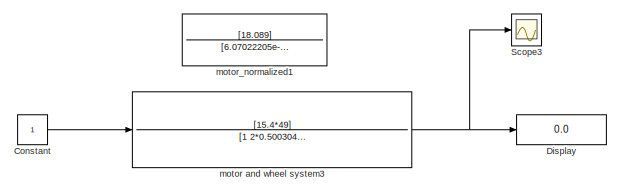
[diagram: root canvas - part 1/2, top left region]
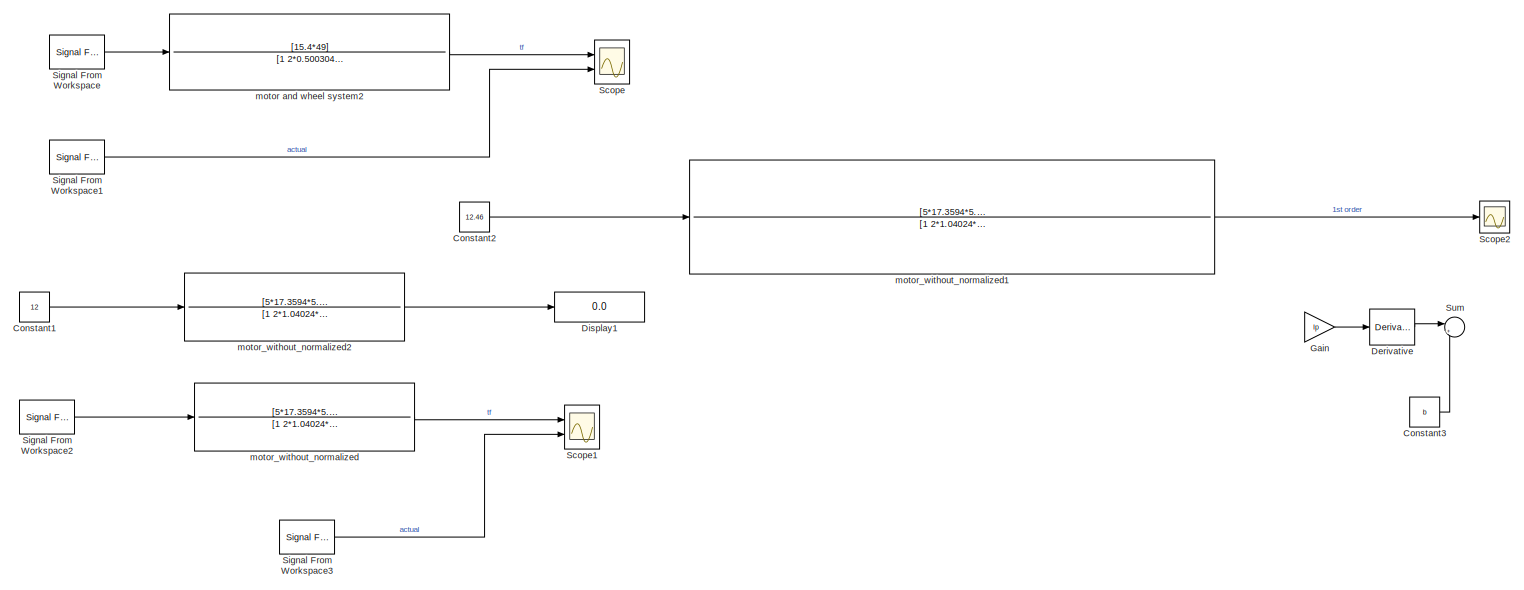
[diagram: root canvas - part 2/2, full width, bottom band]
MODEL slx_ca556a3719e0
KIND model
CONFIG AbsTol = auto
CONFIG EnableMultiTasking = off
CONFIG FixedStep = 1274.587e-6
CONFIG MaxStep = auto
CONFIG MinStep = auto
CONFIG RelTol = 1e-3
CONFIG SampleTimeConstraint = Unconstrained
CONFIG Solver = ode23tb
CONFIG SolverName = ode23tb
CONFIG StartTime = 0.0
CONFIG StopTime = 3
BLOCK [Constant] Constant
  Commented = on
BLOCK [Constant] Constant1
  Commented = on
  Value = 12
BLOCK [Constant] Constant2
  Value = 12.46
BLOCK [Constant] Constant3
  Commented = on
  Value = b
BLOCK [Derivative] Derivative
  Commented = on
BLOCK [Display] Display
  Commented = on
  Decimation = 1
  Ports = [1]
BLOCK [Display] Display1
  Commented = on
  Decimation = 1
  Ports = [1]
BLOCK [Gain] Gain
  Commented = on
  Gain = Ip
  OutDataTypeStr = Inherit: Inherit via internal rule
  ParamDataTypeStr = Inherit: Inherit via internal rule
  SaturateOnIntegerOverflow = off
BLOCK [Scope] Scope
  Commented = on
  Floating = off
  NumInputPorts = 2
  Ports = [2]
  ScopeSpecificationString = Simulink.scopes.TimeScopeBlockCfg('CurrentConfiguration', extmgr.ConfigurationSet(extmgr.Configuration('Core','General UI',true),extmgr.Configuration('Core','Source UI',true),extmgr.Configuration('Sources','WiredSimulink',true),extmgr.Configuration('Visuals','Time Domain',true,'SerializedDisplays',{struct('MinYLimReal','-27.47449','MaxYLimReal','244.16383','YLabelReal','RPM','MinYLimMag','0.00000'...<+1456ch>
BLOCK [Scope] Scope1
  Commented = on
  Floating = off
  NumInputPorts = 2
  Ports = [2]
  ScopeSpecificationString = Simulink.scopes.TimeScopeBlockCfg('CurrentConfiguration', extmgr.ConfigurationSet(extmgr.Configuration('Core','General UI',true),extmgr.Configuration('Core','Source UI',true),extmgr.Configuration('Sources','WiredSimulink',true,'DataLoggingVariableName','ScopeData1'),extmgr.Configuration('Visuals','Time Domain',true,'SerializedDisplays',{struct('MinYLimReal','-27.125','MaxYLimReal','244.125','YLabe...<+1393ch>
BLOCK [Scope] Scope2
  Floating = off
  NumInputPorts = 1
  Ports = [1]
  ScopeSpecificationString = Simulink.scopes.TimeScopeBlockCfg('CurrentConfiguration', extmgr.ConfigurationSet(extmgr.Configuration('Core','General UI',true),extmgr.Configuration('Core','Source UI',true),extmgr.Configuration('Sources','WiredSimulink',true,'DataLoggingVariableName','ScopeData1'),extmgr.Configuration('Visuals','Time Domain',true,'SerializedDisplays',{struct('MinYLimReal','-0.52185','MaxYLimReal','4.69667','YLab...<+1563ch>
BLOCK [Scope] Scope3
  Commented = on
  Floating = off
  NumInputPorts = 1
  Ports = [1]
  ScopeSpecificationString = Simulink.scopes.TimeScopeBlockCfg('CurrentConfiguration', extmgr.ConfigurationSet(extmgr.Configuration('Core','General UI',true),extmgr.Configuration('Core','Source UI',true),extmgr.Configuration('Sources','WiredSimulink',true,'DataLoggingVariableName','ScopeData2'),extmgr.Configuration('Visuals','Time Domain',true,'SerializedDisplays',{struct('MinYLimReal','-26.47526','MaxYLimReal','238.27738','Y...<+1462ch>
BLOCK [Reference] Signal From Workspace  REF=dspsrcs4/Signal From
Workspace
  Commented = on
  Ports = [0, 1]
  SourceBlock = dspsrcs4/Signal From\nWorkspace
  SourceProductBaseCode = DS
  SourceProductName = DSP System Toolbox
  SourceType = Signal From Workspace
BLOCK [Reference] Signal From Workspace1  REF=dspsrcs4/Signal From
Workspace
  Commented = on
  Ports = [0, 1]
  SourceBlock = dspsrcs4/Signal From\nWorkspace
  SourceProductBaseCode = DS
  SourceProductName = DSP System Toolbox
  SourceType = Signal From Workspace
BLOCK [Reference] Signal From Workspace2  REF=dspsrcs4/Signal From
Workspace
  Commented = on
  Ports = [0, 1]
  SourceBlock = dspsrcs4/Signal From\nWorkspace
  SourceProductBaseCode = DS
  SourceProductName = DSP System Toolbox
  SourceType = Signal From Workspace
BLOCK [Reference] Signal From Workspace3  REF=dspsrcs4/Signal From
Workspace
  Commented = on
  Ports = [0, 1]
  SourceBlock = dspsrcs4/Signal From\nWorkspace
  SourceProductBaseCode = DS
  SourceProductName = DSP System Toolbox
  SourceType = Signal From Workspace
BLOCK [Sum] Sum
  Commented = on
  IconShape = round
  InputSameDT = off
  Inputs = |++
  OutDataTypeStr = Inherit: Inherit via internal rule
  Ports = [2, 1]
  SaturateOnIntegerOverflow = off
BLOCK [TransferFcn] motor and wheel system2
  Commented = on
  Denominator = [1 2*0.50030405*7 49]
  Numerator = [15.4*49]
BLOCK [TransferFcn] motor and wheel system3
  Commented = on
  Denominator = [1 2*0.50030405*7 49]
  Numerator = [15.4*49]
BLOCK [TransferFcn] motor_normalized1
  Commented = on
  Denominator = [6.07022205e-03 1]
  Numerator = [18.089]
BLOCK [TransferFcn] motor_without_normalized
  Commented = on
  Denominator = [1 2*1.04024*5.1137 5.1137^2]
  Numerator = [5*17.3594*5.1137]
BLOCK [TransferFcn] motor_without_normalized1
  Denominator = [1 2*1.04024*5.1137 5.1137^2]
  Numerator = [5*17.3594*5.1137*Ip 5*17.3594*5.1137*b]
BLOCK [TransferFcn] motor_without_normalized2
  Commented = on
  Denominator = [1 2*1.04024*5.1137 5.1137^2]
  Numerator = [5*17.3594*5.1137]
LINE Constant1:1 -> motor_without_normalized2:1
LINE Constant2:1 -> motor_without_normalized1:1
LINE Constant3:1 -> Sum:2
LINE Constant:1 -> motor and wheel system3:1
LINE Derivative:1 -> Sum:1
LINE Gain:1 -> Derivative:1
LINE Signal From Workspace1:1 -> Scope:2
LINE Signal From Workspace2:1 -> motor_without_normalized:1
LINE Signal From Workspace3:1 -> Scope1:2
LINE Signal From Workspace:1 -> motor and wheel system2:1
LINE motor and wheel system2:1 -> Scope:1
NET motor and wheel system3:1 -> Display:1, Scope3:1
LINE motor_without_normalized1:1 -> Scope2:1
LINE motor_without_normalized2:1 -> Display1:1
LINE motor_without_normalized:1 -> Scope1:1
note: NET lines group one-source signal fan-out (src -> all destinations, sorted); 1:1 wires keep LINE
